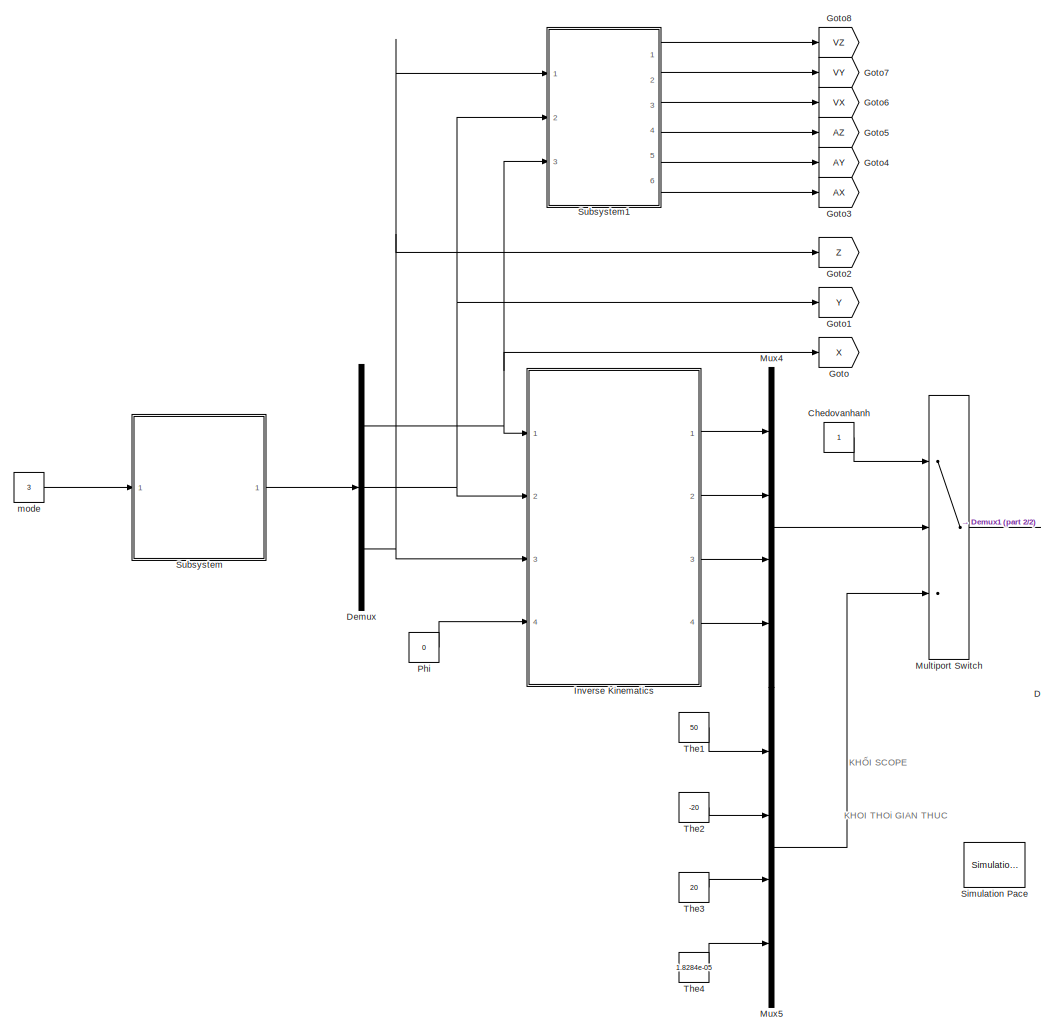
[diagram: root canvas - part 1/2, left side, full height]
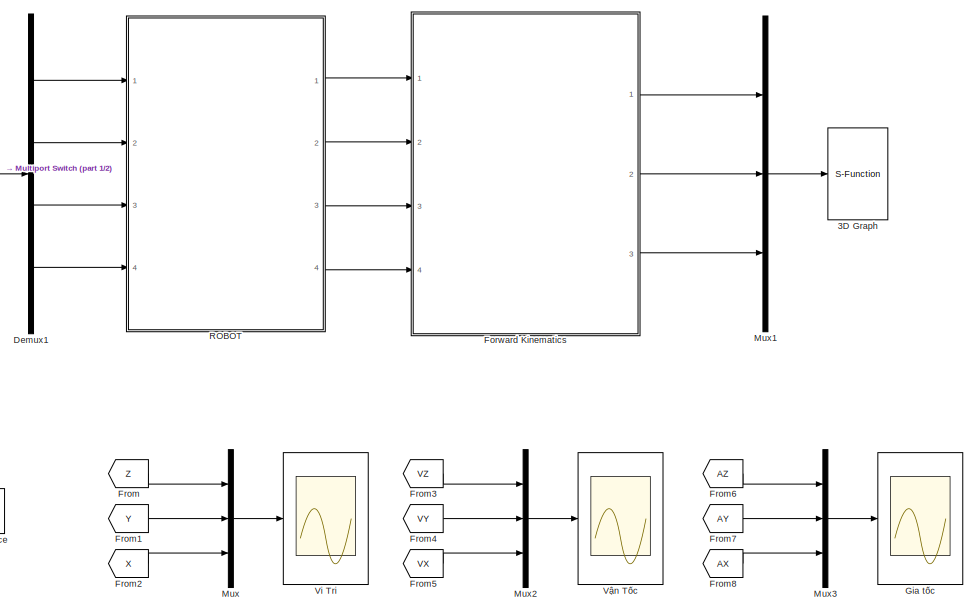
[diagram: root canvas - part 2/2, middle right region]
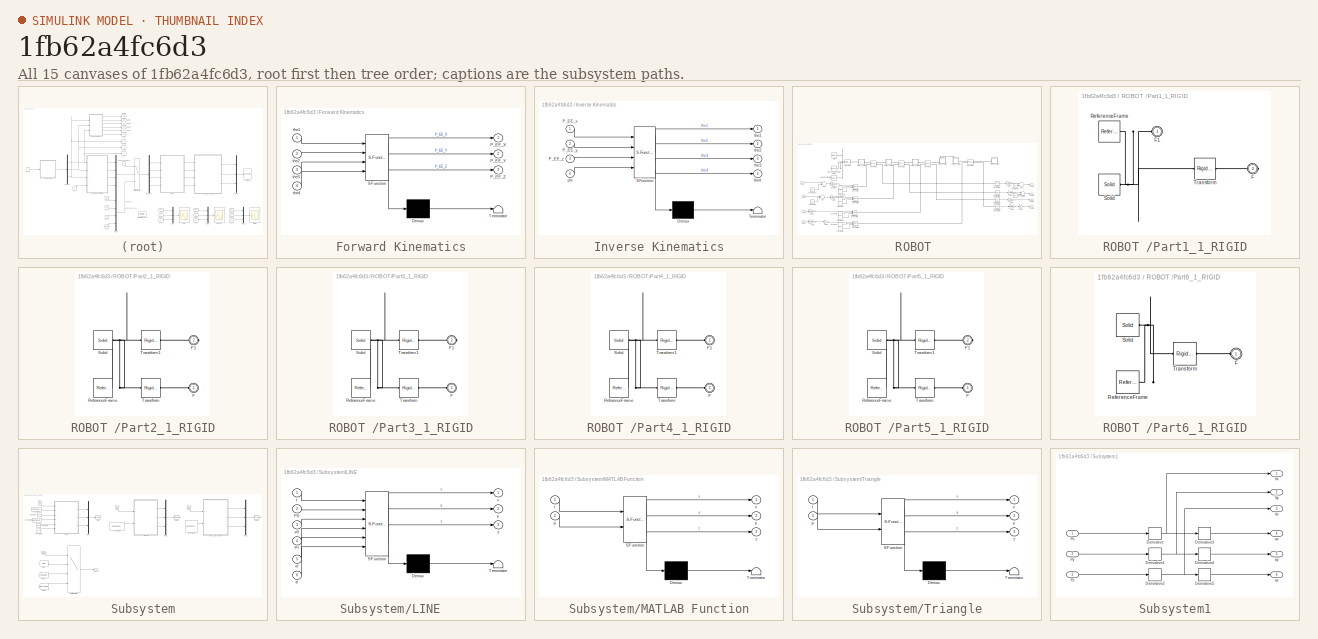
[diagram: thumbnail index - all 15 canvases of the model, root first then tree order]
MODEL slx_1fb62a4fc6d3
KIND model
CONFIG AbsTol = auto
CONFIG EnableMultiTasking = off
CONFIG FixedStep = 0.01
CONFIG MaxStep = auto
CONFIG MinStep = auto
CONFIG RelTol = 1e-3
CONFIG SampleTimeConstraint = Unconstrained
CONFIG Solver = FixedStepAuto
CONFIG SolverName = FixedStepAuto
CONFIG StartTime = 0.0
CONFIG StopTime = 40
WORKSPACE source: external: MATLAB File  (data not in archive)
BLOCK [S-Function] 3D Graph
  CopyFcn = if exist('sfun3d','file'), sfun3d([],[],[],'CopyBlock'); end
  DeleteFcn = if exist('sfun3d','file'), sfun3d([],[],[],'DeleteBlock'); end
  EnableBusSupport = off
  FunctionName = sfun3d
  LoadFcn = if exist('sfun3d','file'), sfun3d([],[],[],'LoadBlock'); end
  NameChangeFcn = if exist('sfun3d','file'), sfun3d([],[],[],'NameChange'); end
  Parameters = ax,T,np,cp,gd,ls,mk,mx,hd,tb
  Ports = [1]
  SFcnIsStateOwnerBlock = off
  SFunctionDeploymentMode = off
BLOCK [Constant] Chedovanhanh
BLOCK [Demux] Demux
  DisplayOption = bar
  Outputs = 3
  Ports = [1, 3]
BLOCK [Demux] Demux1
  DisplayOption = bar
  Ports = [1, 4]
BLOCK [SubSystem] Forward Kinematics
  ErrorFcn = Stateflow.Translate.translate
  PermitHierarchicalResolution = ExplicitOnly
  Ports = [4, 3]
  RequestExecContextInheritance = off
  SFBlockType = MATLAB Function
  TreatAsAtomicUnit = on
  Variant = off
BLOCK [Demux] Forward Kinematics/ Demux 
  Outputs = 1
  Ports = [1, 1]
BLOCK [S-Function] Forward Kinematics/ SFunction 
  EnableBusSupport = on
  FunctionName = sf_sfun
  PortCounts = [4 4]
  Ports = [4, 4]
  SFcnIsStateOwnerBlock = off
  SFunctionDeploymentMode = off
  Tag = Stateflow S-Function Assem1 2
BLOCK [Terminator] Forward Kinematics/ Terminator 
BLOCK [Outport] Forward Kinematics/P_EE_X
  IconDisplay = Port number
BLOCK [Outport] Forward Kinematics/P_EE_Y
  IconDisplay = Port number
  Port = 2
BLOCK [Outport] Forward Kinematics/P_EE_Z
  IconDisplay = Port number
  Port = 3
BLOCK [Inport] Forward Kinematics/the1
  IconDisplay = Port number
BLOCK [Inport] Forward Kinematics/the2
  IconDisplay = Port number
  Port = 2
BLOCK [Inport] Forward Kinematics/the3
  IconDisplay = Port number
  Port = 3
BLOCK [Inport] Forward Kinematics/the4
  IconDisplay = Port number
  Port = 4
BLOCK [From] From
  GotoTag = Z
BLOCK [From] From1
  GotoTag = Y
BLOCK [From] From2
  GotoTag = X
BLOCK [From] From3
  GotoTag = VZ
BLOCK [From] From4
  GotoTag = VY
BLOCK [From] From5
  GotoTag = VX
BLOCK [From] From6
  GotoTag = AZ
BLOCK [From] From7
  GotoTag = AY
BLOCK [From] From8
  GotoTag = AX
BLOCK [Scope] Gia tốc
  NumInputPorts = 1
  Ports = [1]
  ScopeSpecificationString = Simulink.scopes.TimeScopeBlockCfg('CurrentConfiguration', extmgr.ConfigurationSet(extmgr.Configuration('Core','General UI',true,'FigureColor',[1 1 1]),extmgr.Configuration('Core','Source UI',true),extmgr.Configuration('Sources','WiredSimulink',true,'DataLogging',true,'DataLoggingVariableName','ScopeData1','DataLoggingSaveFormat','StructureWithTime'),extmgr.Configuration('Visuals','Time Domain',tru...<+1853ch>
BLOCK [Goto] Goto
  GotoTag = X
BLOCK [Goto] Goto1
  GotoTag = Y
BLOCK [Goto] Goto2
  GotoTag = Z
BLOCK [Goto] Goto3
  GotoTag = AX
BLOCK [Goto] Goto4
  GotoTag = AY
BLOCK [Goto] Goto5
  GotoTag = AZ
BLOCK [Goto] Goto6
  GotoTag = VX
BLOCK [Goto] Goto7
  GotoTag = VY
BLOCK [Goto] Goto8
  GotoTag = VZ
BLOCK [SubSystem] Inverse Kinematics
  ErrorFcn = Stateflow.Translate.translate
  PermitHierarchicalResolution = ExplicitOnly
  Ports = [4, 4]
  RequestExecContextInheritance = off
  SFBlockType = MATLAB Function
  TreatAsAtomicUnit = on
  Variant = off
BLOCK [Demux] Inverse Kinematics/ Demux 
  Outputs = 1
  Ports = [1, 1]
BLOCK [S-Function] Inverse Kinematics/ SFunction 
  EnableBusSupport = on
  FunctionName = sf_sfun
  PortCounts = [4 5]
  Ports = [4, 5]
  SFcnIsStateOwnerBlock = off
  SFunctionDeploymentMode = off
  Tag = Stateflow S-Function Assem1 1
BLOCK [Terminator] Inverse Kinematics/ Terminator 
BLOCK [Inport] Inverse Kinematics/P_EE_x
  IconDisplay = Port number
BLOCK [Inport] Inverse Kinematics/P_EE_y
  IconDisplay = Port number
  Port = 2
BLOCK [Inport] Inverse Kinematics/P_EE_z
  IconDisplay = Port number
  Port = 3
BLOCK [Inport] Inverse Kinematics/phi
  IconDisplay = Port number
  Port = 4
BLOCK [Outport] Inverse Kinematics/the1
  IconDisplay = Port number
BLOCK [Outport] Inverse Kinematics/the2
  IconDisplay = Port number
  Port = 2
BLOCK [Outport] Inverse Kinematics/the3
  IconDisplay = Port number
  Port = 3
BLOCK [Outport] Inverse Kinematics/the4
  IconDisplay = Port number
  Port = 4
BLOCK [MultiPortSwitch] Multiport Switch
  InputSameDT = off
  Inputs = 2
  Ports = [3, 1]
  SaturateOnIntegerOverflow = off
BLOCK [Mux] Mux
  DisplayOption = bar
  Inputs = 3
  Ports = [3, 1]
BLOCK [Mux] Mux1
  DisplayOption = bar
  Inputs = 3
  Ports = [3, 1]
BLOCK [Mux] Mux2
  DisplayOption = bar
  Inputs = 3
  Ports = [3, 1]
BLOCK [Mux] Mux3
  DisplayOption = bar
  Inputs = 3
  Ports = [3, 1]
BLOCK [Mux] Mux4
  DisplayOption = bar
  Ports = [4, 1]
BLOCK [Mux] Mux5
  DisplayOption = bar
  Ports = [4, 1]
BLOCK [Constant] Phi
  Value = 0
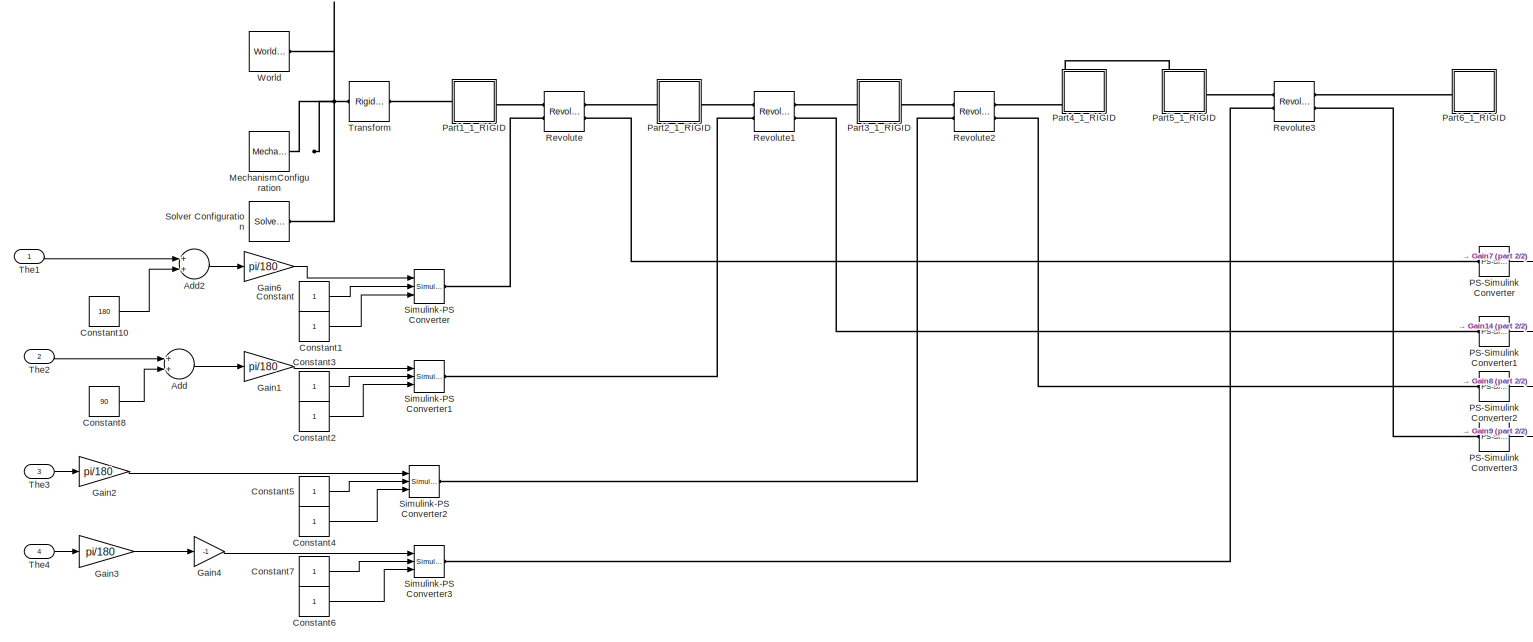
[diagram: ROBOT  - part 1/2, most of the canvas]
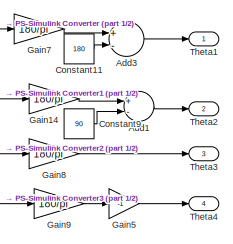
[diagram: ROBOT  - part 2/2, middle right region]
BLOCK [SubSystem] ROBOT 
  Ports = [4, 4]
  RequestExecContextInheritance = off
  Variant = off
BLOCK [Sum] ROBOT /Add
  InputSameDT = off
  OutDataTypeStr = Inherit: Inherit via internal rule
  Ports = [2, 1]
  SaturateOnIntegerOverflow = off
BLOCK [Sum] ROBOT /Add1
  InputSameDT = off
  Inputs = +-
  OutDataTypeStr = Inherit: Inherit via internal rule
  Ports = [2, 1]
  SaturateOnIntegerOverflow = off
BLOCK [Sum] ROBOT /Add2
  InputSameDT = off
  OutDataTypeStr = Inherit: Inherit via internal rule
  Ports = [2, 1]
  SaturateOnIntegerOverflow = off
BLOCK [Sum] ROBOT /Add3
  InputSameDT = off
  Inputs = +-
  OutDataTypeStr = Inherit: Inherit via internal rule
  Ports = [2, 1]
  SaturateOnIntegerOverflow = off
BLOCK [Constant] ROBOT /Constant
BLOCK [Constant] ROBOT /Constant1
BLOCK [Constant] ROBOT /Constant10
  Value = 180
BLOCK [Constant] ROBOT /Constant11
  Value = 180
BLOCK [Constant] ROBOT /Constant2
BLOCK [Constant] ROBOT /Constant3
BLOCK [Constant] ROBOT /Constant4
BLOCK [Constant] ROBOT /Constant5
BLOCK [Constant] ROBOT /Constant6
BLOCK [Constant] ROBOT /Constant7
BLOCK [Constant] ROBOT /Constant8
  Value = 90
BLOCK [Constant] ROBOT /Constant9
  Value = 90
BLOCK [Gain] ROBOT /Gain1
  Gain = pi/180
  OutDataTypeStr = Inherit: Inherit via internal rule
  ParamDataTypeStr = Inherit: Inherit via internal rule
  SaturateOnIntegerOverflow = off
BLOCK [Gain] ROBOT /Gain14
  Gain = 180/pi
  OutDataTypeStr = Inherit: Inherit via internal rule
  ParamDataTypeStr = Inherit: Inherit via internal rule
  SaturateOnIntegerOverflow = off
BLOCK [Gain] ROBOT /Gain2
  Gain = pi/180
  OutDataTypeStr = Inherit: Inherit via internal rule
  ParamDataTypeStr = Inherit: Inherit via internal rule
  SaturateOnIntegerOverflow = off
BLOCK [Gain] ROBOT /Gain3
  Gain = pi/180
  OutDataTypeStr = Inherit: Inherit via internal rule
  ParamDataTypeStr = Inherit: Inherit via internal rule
  SaturateOnIntegerOverflow = off
BLOCK [Gain] ROBOT /Gain4
  Gain = -1
  OutDataTypeStr = Inherit: Inherit via internal rule
  ParamDataTypeStr = Inherit: Inherit via internal rule
  SaturateOnIntegerOverflow = off
BLOCK [Gain] ROBOT /Gain5
  Gain = -1
  OutDataTypeStr = Inherit: Inherit via internal rule
  ParamDataTypeStr = Inherit: Inherit via internal rule
  SaturateOnIntegerOverflow = off
BLOCK [Gain] ROBOT /Gain6
  Gain = pi/180
  OutDataTypeStr = Inherit: Inherit via internal rule
  ParamDataTypeStr = Inherit: Inherit via internal rule
  SaturateOnIntegerOverflow = off
BLOCK [Gain] ROBOT /Gain7
  Gain = 180/pi
  OutDataTypeStr = Inherit: Inherit via internal rule
  ParamDataTypeStr = Inherit: Inherit via internal rule
  SaturateOnIntegerOverflow = off
BLOCK [Gain] ROBOT /Gain8
  Gain = 180/pi
  OutDataTypeStr = Inherit: Inherit via internal rule
  ParamDataTypeStr = Inherit: Inherit via internal rule
  SaturateOnIntegerOverflow = off
BLOCK [Gain] ROBOT /Gain9
  Gain = 180/pi
  OutDataTypeStr = Inherit: Inherit via internal rule
  ParamDataTypeStr = Inherit: Inherit via internal rule
  SaturateOnIntegerOverflow = off
BLOCK [Reference] ROBOT /MechanismConfiguration  REF=sm_lib/Utilities/Mechanism
Configuration
  Ports = [0, 0, 0, 0, 0, 0, 1]
  SourceBlock = sm_lib/Utilities/Mechanism\nConfiguration
  SourceProductBaseCode = MS
  SourceProductName = Simscape Multibody
  SourceType = Mechanism\nConfiguration
BLOCK [Reference] ROBOT /PS-Simulink Converter  REF=nesl_utility/PS-Simulink
Converter
  Ports = [0, 1, 0, 0, 0, 1]
  SourceBlock = nesl_utility/PS-Simulink\nConverter
  SourceProductBaseCode = SS
  SourceProductName = Simscape
  SourceType = PS-Simulink\nConverter
BLOCK [Reference] ROBOT /PS-Simulink Converter1  REF=nesl_utility/PS-Simulink
Converter
  Ports = [0, 1, 0, 0, 0, 1]
  SourceBlock = nesl_utility/PS-Simulink\nConverter
  SourceProductBaseCode = SS
  SourceProductName = Simscape
  SourceType = PS-Simulink\nConverter
BLOCK [Reference] ROBOT /PS-Simulink Converter2  REF=nesl_utility/PS-Simulink
Converter
  Ports = [0, 1, 0, 0, 0, 1]
  SourceBlock = nesl_utility/PS-Simulink\nConverter
  SourceProductBaseCode = SS
  SourceProductName = Simscape
  SourceType = PS-Simulink\nConverter
BLOCK [Reference] ROBOT /PS-Simulink Converter3  REF=nesl_utility/PS-Simulink
Converter
  Ports = [0, 1, 0, 0, 0, 1]
  SourceBlock = nesl_utility/PS-Simulink\nConverter
  SourceProductBaseCode = SS
  SourceProductName = Simscape
  SourceType = PS-Simulink\nConverter
BLOCK [SubSystem] ROBOT /Part1_1_RIGID
  Ports = [0, 0, 0, 0, 0, 1, 1]
  RequestExecContextInheritance = off
  Variant = off
BLOCK [PMIOPort] ROBOT /Part1_1_RIGID/F
  Port = 2
  Side = Right
BLOCK [PMIOPort] ROBOT /Part1_1_RIGID/F1
  Port = 1
  Side = Left
BLOCK [Reference] ROBOT /Part1_1_RIGID/ReferenceFrame  REF=sm_lib/Frames and
Transforms/Reference
Frame
  Ports = [0, 0, 0, 0, 0, 0, 1]
  SourceBlock = sm_lib/Frames and\nTransforms/Reference\nFrame
  SourceProductBaseCode = MS
  SourceProductName = Simscape Multibody
  SourceType = Reference\nFrame
BLOCK [Reference] ROBOT /Part1_1_RIGID/Solid  REF=sm_lib/Body Elements/Solid
  Ports = [0, 0, 0, 0, 0, 0, 1]
  SourceBlock = sm_lib/Body Elements/Solid
  SourceProductBaseCode = MS
  SourceProductName = Simscape Multibody
  SourceType = Solid
BLOCK [Reference] ROBOT /Part1_1_RIGID/Transform  REF=sm_lib/Frames and
Transforms/Rigid
Transform
  Ports = [0, 0, 0, 0, 0, 1, 1]
  SourceBlock = sm_lib/Frames and\nTransforms/Rigid\nTransform
  SourceProductBaseCode = MS
  SourceProductName = Simscape Multibody
  SourceType = Rigid\nTransform
BLOCK [SubSystem] ROBOT /Part2_1_RIGID
  Ports = [0, 0, 0, 0, 0, 1, 1]
  RequestExecContextInheritance = off
  Variant = off
BLOCK [PMIOPort] ROBOT /Part2_1_RIGID/F
  Port = 1
  Side = Left
BLOCK [PMIOPort] ROBOT /Part2_1_RIGID/F1
  Port = 2
  Side = Right
BLOCK [Reference] ROBOT /Part2_1_RIGID/ReferenceFrame  REF=sm_lib/Frames and
Transforms/Reference
Frame
  Ports = [0, 0, 0, 0, 0, 0, 1]
  SourceBlock = sm_lib/Frames and\nTransforms/Reference\nFrame
  SourceProductBaseCode = MS
  SourceProductName = Simscape Multibody
  SourceType = Reference\nFrame
BLOCK [Reference] ROBOT /Part2_1_RIGID/Solid  REF=sm_lib/Body Elements/Solid
  Ports = [0, 0, 0, 0, 0, 0, 1]
  SourceBlock = sm_lib/Body Elements/Solid
  SourceProductBaseCode = MS
  SourceProductName = Simscape Multibody
  SourceType = Solid
BLOCK [Reference] ROBOT /Part2_1_RIGID/Transform  REF=sm_lib/Frames and
Transforms/Rigid
Transform
  Ports = [0, 0, 0, 0, 0, 1, 1]
  SourceBlock = sm_lib/Frames and\nTransforms/Rigid\nTransform
  SourceProductBaseCode = MS
  SourceProductName = Simscape Multibody
  SourceType = Rigid\nTransform
BLOCK [Reference] ROBOT /Part2_1_RIGID/Transform1  REF=sm_lib/Frames and
Transforms/Rigid
Transform
  Ports = [0, 0, 0, 0, 0, 1, 1]
  SourceBlock = sm_lib/Frames and\nTransforms/Rigid\nTransform
  SourceProductBaseCode = MS
  SourceProductName = Simscape Multibody
  SourceType = Rigid\nTransform
BLOCK [SubSystem] ROBOT /Part3_1_RIGID
  Ports = [0, 0, 0, 0, 0, 1, 1]
  RequestExecContextInheritance = off
  Variant = off
BLOCK [PMIOPort] ROBOT /Part3_1_RIGID/F
  Port = 1
  Side = Left
BLOCK [PMIOPort] ROBOT /Part3_1_RIGID/F1
  Port = 2
  Side = Right
BLOCK [Reference] ROBOT /Part3_1_RIGID/ReferenceFrame  REF=sm_lib/Frames and
Transforms/Reference
Frame
  Ports = [0, 0, 0, 0, 0, 0, 1]
  SourceBlock = sm_lib/Frames and\nTransforms/Reference\nFrame
  SourceProductBaseCode = MS
  SourceProductName = Simscape Multibody
  SourceType = Reference\nFrame
BLOCK [Reference] ROBOT /Part3_1_RIGID/Solid  REF=sm_lib/Body Elements/Solid
  Ports = [0, 0, 0, 0, 0, 0, 1]
  SourceBlock = sm_lib/Body Elements/Solid
  SourceProductBaseCode = MS
  SourceProductName = Simscape Multibody
  SourceType = Solid
BLOCK [Reference] ROBOT /Part3_1_RIGID/Transform  REF=sm_lib/Frames and
Transforms/Rigid
Transform
  Ports = [0, 0, 0, 0, 0, 1, 1]
  SourceBlock = sm_lib/Frames and\nTransforms/Rigid\nTransform
  SourceProductBaseCode = MS
  SourceProductName = Simscape Multibody
  SourceType = Rigid\nTransform
BLOCK [Reference] ROBOT /Part3_1_RIGID/Transform1  REF=sm_lib/Frames and
Transforms/Rigid
Transform
  Ports = [0, 0, 0, 0, 0, 1, 1]
  SourceBlock = sm_lib/Frames and\nTransforms/Rigid\nTransform
  SourceProductBaseCode = MS
  SourceProductName = Simscape Multibody
  SourceType = Rigid\nTransform
BLOCK [SubSystem] ROBOT /Part4_1_RIGID
  Ports = [0, 0, 0, 0, 0, 2]
  RequestExecContextInheritance = off
  Variant = off
BLOCK [PMIOPort] ROBOT /Part4_1_RIGID/F
  Port = 2
  Side = Left
BLOCK [PMIOPort] ROBOT /Part4_1_RIGID/F1
  Port = 1
  Side = Left
BLOCK [Reference] ROBOT /Part4_1_RIGID/ReferenceFrame  REF=sm_lib/Frames and
Transforms/Reference
Frame
  Ports = [0, 0, 0, 0, 0, 0, 1]
  SourceBlock = sm_lib/Frames and\nTransforms/Reference\nFrame
  SourceProductBaseCode = MS
  SourceProductName = Simscape Multibody
  SourceType = Reference\nFrame
BLOCK [Reference] ROBOT /Part4_1_RIGID/Solid  REF=sm_lib/Body Elements/Solid
  Ports = [0, 0, 0, 0, 0, 0, 1]
  SourceBlock = sm_lib/Body Elements/Solid
  SourceProductBaseCode = MS
  SourceProductName = Simscape Multibody
  SourceType = Solid
BLOCK [Reference] ROBOT /Part4_1_RIGID/Transform  REF=sm_lib/Frames and
Transforms/Rigid
Transform
  Ports = [0, 0, 0, 0, 0, 1, 1]
  SourceBlock = sm_lib/Frames and\nTransforms/Rigid\nTransform
  SourceProductBaseCode = MS
  SourceProductName = Simscape Multibody
  SourceType = Rigid\nTransform
BLOCK [Reference] ROBOT /Part4_1_RIGID/Transform1  REF=sm_lib/Frames and
Transforms/Rigid
Transform
  Ports = [0, 0, 0, 0, 0, 1, 1]
  SourceBlock = sm_lib/Frames and\nTransforms/Rigid\nTransform
  SourceProductBaseCode = MS
  SourceProductName = Simscape Multibody
  SourceType = Rigid\nTransform
BLOCK [SubSystem] ROBOT /Part5_1_RIGID
  Ports = [0, 0, 0, 0, 0, 1, 1]
  RequestExecContextInheritance = off
  Variant = off
BLOCK [PMIOPort] ROBOT /Part5_1_RIGID/F
  Port = 1
  Side = Left
BLOCK [PMIOPort] ROBOT /Part5_1_RIGID/F1
  Port = 2
  Side = Right
BLOCK [Reference] ROBOT /Part5_1_RIGID/ReferenceFrame  REF=sm_lib/Frames and
Transforms/Reference
Frame
  Ports = [0, 0, 0, 0, 0, 0, 1]
  SourceBlock = sm_lib/Frames and\nTransforms/Reference\nFrame
  SourceProductBaseCode = MS
  SourceProductName = Simscape Multibody
  SourceType = Reference\nFrame
BLOCK [Reference] ROBOT /Part5_1_RIGID/Solid  REF=sm_lib/Body Elements/Solid
  Ports = [0, 0, 0, 0, 0, 0, 1]
  SourceBlock = sm_lib/Body Elements/Solid
  SourceProductBaseCode = MS
  SourceProductName = Simscape Multibody
  SourceType = Solid
BLOCK [Reference] ROBOT /Part5_1_RIGID/Transform  REF=sm_lib/Frames and
Transforms/Rigid
Transform
  Ports = [0, 0, 0, 0, 0, 1, 1]
  SourceBlock = sm_lib/Frames and\nTransforms/Rigid\nTransform
  SourceProductBaseCode = MS
  SourceProductName = Simscape Multibody
  SourceType = Rigid\nTransform
BLOCK [Reference] ROBOT /Part5_1_RIGID/Transform1  REF=sm_lib/Frames and
Transforms/Rigid
Transform
  Ports = [0, 0, 0, 0, 0, 1, 1]
  SourceBlock = sm_lib/Frames and\nTransforms/Rigid\nTransform
  SourceProductBaseCode = MS
  SourceProductName = Simscape Multibody
  SourceType = Rigid\nTransform
BLOCK [SubSystem] ROBOT /Part6_1_RIGID
  Ports = [0, 0, 0, 0, 0, 1]
  RequestExecContextInheritance = off
  Variant = off
BLOCK [PMIOPort] ROBOT /Part6_1_RIGID/F
  Port = 1
  Side = Left
BLOCK [Reference] ROBOT /Part6_1_RIGID/ReferenceFrame  REF=sm_lib/Frames and
Transforms/Reference
Frame
  Ports = [0, 0, 0, 0, 0, 0, 1]
  SourceBlock = sm_lib/Frames and\nTransforms/Reference\nFrame
  SourceProductBaseCode = MS
  SourceProductName = Simscape Multibody
  SourceType = Reference\nFrame
BLOCK [Reference] ROBOT /Part6_1_RIGID/Solid  REF=sm_lib/Body Elements/Solid
  Ports = [0, 0, 0, 0, 0, 0, 1]
  SourceBlock = sm_lib/Body Elements/Solid
  SourceProductBaseCode = MS
  SourceProductName = Simscape Multibody
  SourceType = Solid
BLOCK [Reference] ROBOT /Part6_1_RIGID/Transform  REF=sm_lib/Frames and
Transforms/Rigid
Transform
  Ports = [0, 0, 0, 0, 0, 1, 1]
  SourceBlock = sm_lib/Frames and\nTransforms/Rigid\nTransform
  SourceProductBaseCode = MS
  SourceProductName = Simscape Multibody
  SourceType = Rigid\nTransform
BLOCK [Reference] ROBOT /Revolute  REF=sm_lib/Joints/Revolute Joint
  Ports = [0, 0, 0, 0, 0, 2, 2]
  SourceBlock = sm_lib/Joints/Revolute Joint
  SourceProductBaseCode = MS
  SourceProductName = Simscape Multibody
  SourceType = Revolute Joint
BLOCK [Reference] ROBOT /Revolute1  REF=sm_lib/Joints/Revolute Joint
  Ports = [0, 0, 0, 0, 0, 2, 2]
  SourceBlock = sm_lib/Joints/Revolute Joint
  SourceProductBaseCode = MS
  SourceProductName = Simscape Multibody
  SourceType = Revolute Joint
BLOCK [Reference] ROBOT /Revolute2  REF=sm_lib/Joints/Revolute Joint
  Ports = [0, 0, 0, 0, 0, 2, 2]
  SourceBlock = sm_lib/Joints/Revolute Joint
  SourceProductBaseCode = MS
  SourceProductName = Simscape Multibody
  SourceType = Revolute Joint
BLOCK [Reference] ROBOT /Revolute3  REF=sm_lib/Joints/Revolute Joint
  Ports = [0, 0, 0, 0, 0, 2, 2]
  SourceBlock = sm_lib/Joints/Revolute Joint
  SourceProductBaseCode = MS
  SourceProductName = Simscape Multibody
  SourceType = Revolute Joint
BLOCK [Reference] ROBOT /Simulink-PS Converter  REF=nesl_utility/Simulink-PS
Converter
  Ports = [3, 0, 0, 0, 0, 0, 1]
  SourceBlock = nesl_utility/Simulink-PS\nConverter
  SourceProductBaseCode = SS
  SourceProductName = Simscape
  SourceType = Simulink-PS\nConverter
BLOCK [Reference] ROBOT /Simulink-PS Converter1  REF=nesl_utility/Simulink-PS
Converter
  Ports = [3, 0, 0, 0, 0, 0, 1]
  SourceBlock = nesl_utility/Simulink-PS\nConverter
  SourceProductBaseCode = SS
  SourceProductName = Simscape
  SourceType = Simulink-PS\nConverter
BLOCK [Reference] ROBOT /Simulink-PS Converter2  REF=nesl_utility/Simulink-PS
Converter
  Ports = [3, 0, 0, 0, 0, 0, 1]
  SourceBlock = nesl_utility/Simulink-PS\nConverter
  SourceProductBaseCode = SS
  SourceProductName = Simscape
  SourceType = Simulink-PS\nConverter
BLOCK [Reference] ROBOT /Simulink-PS Converter3  REF=nesl_utility/Simulink-PS
Converter
  Ports = [3, 0, 0, 0, 0, 0, 1]
  SourceBlock = nesl_utility/Simulink-PS\nConverter
  SourceProductBaseCode = SS
  SourceProductName = Simscape
  SourceType = Simulink-PS\nConverter
BLOCK [Reference] ROBOT /Solver Configuration  REF=nesl_utility/Solver
Configuration
  Ports = [0, 0, 0, 0, 0, 0, 1]
  SourceBlock = nesl_utility/Solver\nConfiguration
  SourceProductBaseCode = SS
  SourceProductName = Simscape
  SourceType = Solver\nConfiguration
BLOCK [Inport] ROBOT /The1
  IconDisplay = Port number
BLOCK [Inport] ROBOT /The2
  IconDisplay = Port number
  Port = 2
BLOCK [Inport] ROBOT /The3
  IconDisplay = Port number
  Port = 3
BLOCK [Inport] ROBOT /The4
  IconDisplay = Port number
  Port = 4
BLOCK [Outport] ROBOT /Theta1
  IconDisplay = Port number
BLOCK [Outport] ROBOT /Theta2
  IconDisplay = Port number
  Port = 2
BLOCK [Outport] ROBOT /Theta3
  IconDisplay = Port number
  Port = 3
BLOCK [Outport] ROBOT /Theta4
  IconDisplay = Port number
  Port = 4
BLOCK [Reference] ROBOT /Transform  REF=sm_lib/Frames and
Transforms/Rigid
Transform
  Ports = [0, 0, 0, 0, 0, 1, 1]
  SourceBlock = sm_lib/Frames and\nTransforms/Rigid\nTransform
  SourceProductBaseCode = MS
  SourceProductName = Simscape Multibody
  SourceType = Rigid\nTransform
BLOCK [Reference] ROBOT /World  REF=sm_lib/Frames and
Transforms/World Frame
  Ports = [0, 0, 0, 0, 0, 0, 1]
  SourceBlock = sm_lib/Frames and\nTransforms/World Frame
  SourceProductBaseCode = MS
  SourceProductName = Simscape Multibody
  SourceType = World Frame
BLOCK [Reference] Simulation Pace  REF=aerolibanimutils/Simulation Pace
  AttributesFormatString = %<SleepMode>\n%<SimulationPace> sec/sec
  Ports = []
  SourceBlock = aerolibanimutils/Simulation Pace
  SourceProductBaseCode = AE
  SourceProductName = Aerospace Blockset
  SourceType = Simulation Pace
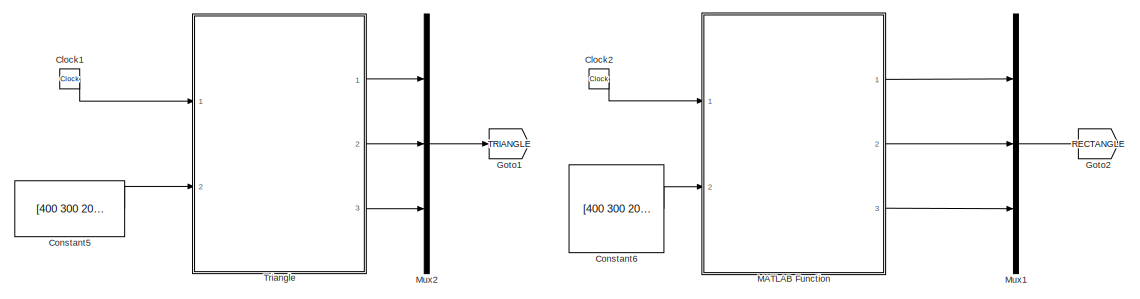
[diagram: Subsystem - part 1/2, top right region]
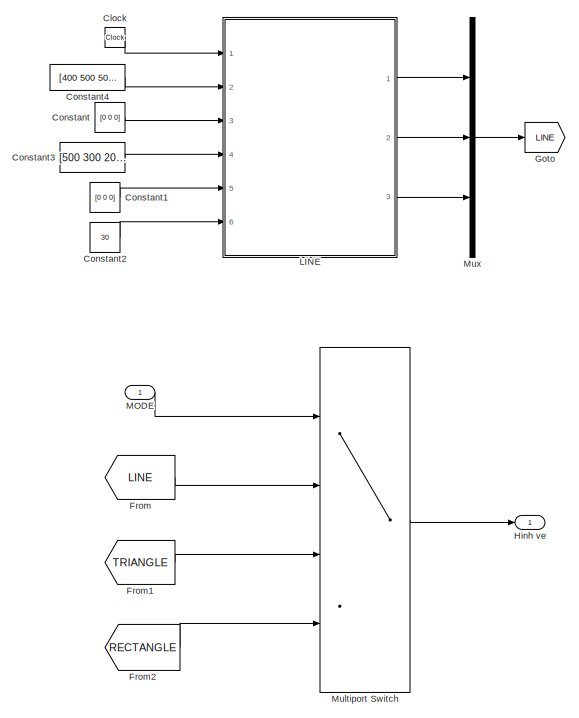
[diagram: Subsystem - part 2/2, left side, full height]
BLOCK [SubSystem] Subsystem
  Ports = [1, 1]
  RequestExecContextInheritance = off
  Variant = off
BLOCK [Clock] Subsystem/Clock
  Decimation = 30
BLOCK [Clock] Subsystem/Clock1
  Decimation = 30
BLOCK [Clock] Subsystem/Clock2
  Decimation = 40
BLOCK [Constant] Subsystem/Constant
  Value = [0 0 0]
BLOCK [Constant] Subsystem/Constant1
  Value = [0 0 0]
BLOCK [Constant] Subsystem/Constant2
  Value = 30
BLOCK [Constant] Subsystem/Constant3
  Value = [500 300 200]
BLOCK [Constant] Subsystem/Constant4
  Value = [400 500 500]
BLOCK [Constant] Subsystem/Constant5
  Value = [400 300 200; 400 500 200; 400 300 400  ]
BLOCK [Constant] Subsystem/Constant6
  Value = [400 300 200; 600 300 200; 600 500 200 ; 400 500 200 ]
BLOCK [From] Subsystem/From
  GotoTag = LINE
BLOCK [From] Subsystem/From1
  GotoTag = TRIANGLE
BLOCK [From] Subsystem/From2
  GotoTag = RECTANGLE
BLOCK [Goto] Subsystem/Goto
  GotoTag = LINE
BLOCK [Goto] Subsystem/Goto1
  GotoTag = TRIANGLE
BLOCK [Goto] Subsystem/Goto2
  GotoTag = RECTANGLE
BLOCK [Outport] Subsystem/Hinh ve
  IconDisplay = Port number
BLOCK [SubSystem] Subsystem/LINE   
  ErrorFcn = Stateflow.Translate.translate
  PermitHierarchicalResolution = ExplicitOnly
  Ports = [6, 3]
  RequestExecContextInheritance = off
  SFBlockType = MATLAB Function
  TreatAsAtomicUnit = on
  Variant = off
BLOCK [Demux] Subsystem/LINE   / Demux 
  Outputs = 1
  Ports = [1, 1]
BLOCK [S-Function] Subsystem/LINE   / SFunction 
  EnableBusSupport = on
  FunctionName = sf_sfun
  PortCounts = [6 4]
  Ports = [6, 4]
  SFcnIsStateOwnerBlock = off
  SFunctionDeploymentMode = off
  Tag = Stateflow S-Function Assem1 3
BLOCK [Terminator] Subsystem/LINE   / Terminator 
BLOCK [Inport] Subsystem/LINE   /P0
  IconDisplay = Port number
  Port = 2
BLOCK [Inport] Subsystem/LINE   /Pf
  IconDisplay = Port number
  Port = 4
BLOCK [Inport] Subsystem/LINE   /t
  IconDisplay = Port number
BLOCK [Inport] Subsystem/LINE   /tf
  IconDisplay = Port number
  Port = 6
BLOCK [Inport] Subsystem/LINE   /v0
  IconDisplay = Port number
  Port = 3
BLOCK [Inport] Subsystem/LINE   /vf
  IconDisplay = Port number
  Port = 5
BLOCK [Outport] Subsystem/LINE   /x
  IconDisplay = Port number
BLOCK [Outport] Subsystem/LINE   /y
  IconDisplay = Port number
  Port = 2
BLOCK [Outport] Subsystem/LINE   /z
  IconDisplay = Port number
  Port = 3
BLOCK [SubSystem] Subsystem/MATLAB Function
  ErrorFcn = Stateflow.Translate.translate
  PermitHierarchicalResolution = ExplicitOnly
  Ports = [2, 3]
  RequestExecContextInheritance = off
  SFBlockType = MATLAB Function
  TreatAsAtomicUnit = on
  Variant = off
BLOCK [Demux] Subsystem/MATLAB Function/ Demux 
  Outputs = 1
  Ports = [1, 1]
BLOCK [S-Function] Subsystem/MATLAB Function/ SFunction 
  EnableBusSupport = on
  FunctionName = sf_sfun
  PortCounts = [2 4]
  Ports = [2, 4]
  SFcnIsStateOwnerBlock = off
  SFunctionDeploymentMode = off
  Tag = Stateflow S-Function Assem1 5
BLOCK [Terminator] Subsystem/MATLAB Function/ Terminator 
BLOCK [Inport] Subsystem/MATLAB Function/p
  IconDisplay = Port number
  Port = 2
BLOCK [Inport] Subsystem/MATLAB Function/t
  IconDisplay = Port number
BLOCK [Outport] Subsystem/MATLAB Function/x
  IconDisplay = Port number
BLOCK [Outport] Subsystem/MATLAB Function/y
  IconDisplay = Port number
  Port = 2
BLOCK [Outport] Subsystem/MATLAB Function/z
  IconDisplay = Port number
  Port = 3
BLOCK [Inport] Subsystem/MODE
  IconDisplay = Port number
BLOCK [MultiPortSwitch] Subsystem/Multiport Switch
  InputSameDT = off
  Ports = [4, 1]
  SaturateOnIntegerOverflow = off
BLOCK [Mux] Subsystem/Mux
  DisplayOption = bar
  Inputs = 3
  Ports = [3, 1]
BLOCK [Mux] Subsystem/Mux1
  DisplayOption = bar
  Inputs = 3
  Ports = [3, 1]
BLOCK [Mux] Subsystem/Mux2
  DisplayOption = bar
  Inputs = 3
  Ports = [3, 1]
BLOCK [SubSystem] Subsystem/Triangle
  ErrorFcn = Stateflow.Translate.translate
  PermitHierarchicalResolution = ExplicitOnly
  Ports = [2, 3]
  RequestExecContextInheritance = off
  SFBlockType = MATLAB Function
  TreatAsAtomicUnit = on
  Variant = off
BLOCK [Demux] Subsystem/Triangle/ Demux 
  Outputs = 1
  Ports = [1, 1]
BLOCK [S-Function] Subsystem/Triangle/ SFunction 
  EnableBusSupport = on
  FunctionName = sf_sfun
  PortCounts = [2 4]
  Ports = [2, 4]
  SFcnIsStateOwnerBlock = off
  SFunctionDeploymentMode = off
  Tag = Stateflow S-Function Assem1 4
BLOCK [Terminator] Subsystem/Triangle/ Terminator 
BLOCK [Inport] Subsystem/Triangle/p
  IconDisplay = Port number
  Port = 2
BLOCK [Inport] Subsystem/Triangle/t
  IconDisplay = Port number
BLOCK [Outport] Subsystem/Triangle/x
  IconDisplay = Port number
BLOCK [Outport] Subsystem/Triangle/y
  IconDisplay = Port number
  Port = 2
BLOCK [Outport] Subsystem/Triangle/z
  IconDisplay = Port number
  Port = 3
BLOCK [SubSystem] Subsystem1
  Ports = [3, 6]
  RequestExecContextInheritance = off
  Variant = off
BLOCK [Derivative] Subsystem1/Derivative
BLOCK [Derivative] Subsystem1/Derivative1
BLOCK [Derivative] Subsystem1/Derivative2
BLOCK [Derivative] Subsystem1/Derivative3
BLOCK [Derivative] Subsystem1/Derivative4
BLOCK [Derivative] Subsystem1/Derivative5
BLOCK [Inport] Subsystem1/Px
  IconDisplay = Port number
BLOCK [Inport] Subsystem1/Py
  IconDisplay = Port number
  Port = 2
BLOCK [Inport] Subsystem1/Pz
  IconDisplay = Port number
  Port = 3
BLOCK [Outport] Subsystem1/Vx
  IconDisplay = Port number
BLOCK [Outport] Subsystem1/Vy
  IconDisplay = Port number
  Port = 2
BLOCK [Outport] Subsystem1/Vz
  IconDisplay = Port number
  Port = 3
BLOCK [Outport] Subsystem1/ax
  IconDisplay = Port number
  Port = 4
BLOCK [Outport] Subsystem1/ay
  IconDisplay = Port number
  Port = 5
BLOCK [Outport] Subsystem1/az
  IconDisplay = Port number
  Port = 6
BLOCK [Constant] The1
  Value = 50
BLOCK [Constant] The2
  Value = -20
BLOCK [Constant] The3
  Value = 20
BLOCK [Constant] The4
  Value = 1.8284e-05
BLOCK [Scope] Vi Tri
  NumInputPorts = 1
  Ports = [1]
  ScopeSpecificationString = Simulink.scopes.TimeScopeBlockCfg('CurrentConfiguration', extmgr.ConfigurationSet(extmgr.Configuration('Core','General UI',true,'FigureColor',[1 1 1]),extmgr.Configuration('Core','Source UI',true),extmgr.Configuration('Sources','WiredSimulink',true,'DataLogging',true,'DataLoggingVariableName','ScopeData2','DataLoggingSaveFormat','StructureWithTime'),extmgr.Configuration('Visuals','Time Domain',tru...<+1851ch>
BLOCK [Scope] Vận Tốc
  NumInputPorts = 1
  Ports = [1]
  ScopeSpecificationString = Simulink.scopes.TimeScopeBlockCfg('CurrentConfiguration', extmgr.ConfigurationSet(extmgr.Configuration('Core','General UI',true,'FigureColor',[1 1 1]),extmgr.Configuration('Core','Source UI',true),extmgr.Configuration('Sources','WiredSimulink',true,'DataLogging',true,'DataLoggingSaveFormat','StructureWithTime'),extmgr.Configuration('Visuals','Time Domain',true,'SerializedDisplays',{struct('MinYLim...<+1805ch>
BLOCK [Constant] mode
  Value = 3
ANNOTATION (root): KHOI THOi GIAN THUC
ANNOTATION (root): KHỐI SCOPE
LINE Chedovanhanh:1 -> Multiport Switch:1
LINE Demux1:1 -> ROBOT :1
LINE Demux1:2 -> ROBOT :2
LINE Demux1:3 -> ROBOT :3
LINE Demux1:4 -> ROBOT :4
NET Demux:1 -> Goto:1, Inverse Kinematics:1, Subsystem1:3
NET Demux:2 -> Goto1:1, Inverse Kinematics:2, Subsystem1:2
NET Demux:3 -> Goto2:1, Inverse Kinematics:3, Subsystem1:1
LINE Forward Kinematics:1 -> Mux1:1
LINE Forward Kinematics:2 -> Mux1:2
LINE Forward Kinematics:3 -> Mux1:3
LINE From1:1 -> Mux:2
LINE From2:1 -> Mux:3
LINE From3:1 -> Mux2:1
LINE From4:1 -> Mux2:2
LINE From5:1 -> Mux2:3
LINE From6:1 -> Mux3:1
LINE From7:1 -> Mux3:2
LINE From8:1 -> Mux3:3
LINE From:1 -> Mux:1
LINE Inverse Kinematics:1 -> Mux4:1
LINE Inverse Kinematics:2 -> Mux4:2
LINE Inverse Kinematics:3 -> Mux4:3
LINE Inverse Kinematics:4 -> Mux4:4
LINE Multiport Switch:1 -> Demux1:1
LINE Mux1:1 -> 3D Graph:1
LINE Mux2:1 -> Vận Tốc:1
LINE Mux3:1 -> Gia tốc:1
LINE Mux4:1 -> Multiport Switch:2
LINE Mux5:1 -> Multiport Switch:3
LINE Mux:1 -> Vi Tri:1
LINE Phi:1 -> Inverse Kinematics:4
LINE ROBOT /Add1:1 -> ROBOT /Theta2:1
LINE ROBOT /Add2:1 -> ROBOT /Gain6:1
LINE ROBOT /Add3:1 -> ROBOT /Theta1:1
LINE ROBOT /Add:1 -> ROBOT /Gain1:1
LINE ROBOT /Constant10:1 -> ROBOT /Add2:2
LINE ROBOT /Constant11:1 -> ROBOT /Add3:2
LINE ROBOT /Constant1:1 -> ROBOT /Simulink-PS Converter:3
LINE ROBOT /Constant2:1 -> ROBOT /Simulink-PS Converter1:3
LINE ROBOT /Constant3:1 -> ROBOT /Simulink-PS Converter1:2
LINE ROBOT /Constant4:1 -> ROBOT /Simulink-PS Converter2:3
LINE ROBOT /Constant5:1 -> ROBOT /Simulink-PS Converter2:2
LINE ROBOT /Constant6:1 -> ROBOT /Simulink-PS Converter3:3
LINE ROBOT /Constant7:1 -> ROBOT /Simulink-PS Converter3:2
LINE ROBOT /Constant8:1 -> ROBOT /Add:2
LINE ROBOT /Constant9:1 -> ROBOT /Add1:2
LINE ROBOT /Constant:1 -> ROBOT /Simulink-PS Converter:2
LINE ROBOT /Gain14:1 -> ROBOT /Add1:1
LINE ROBOT /Gain1:1 -> ROBOT /Simulink-PS Converter1:1
LINE ROBOT /Gain2:1 -> ROBOT /Simulink-PS Converter2:1
LINE ROBOT /Gain3:1 -> ROBOT /Gain4:1
LINE ROBOT /Gain4:1 -> ROBOT /Simulink-PS Converter3:1
LINE ROBOT /Gain5:1 -> ROBOT /Theta4:1
LINE ROBOT /Gain6:1 -> ROBOT /Simulink-PS Converter:1
LINE ROBOT /Gain7:1 -> ROBOT /Add3:1
LINE ROBOT /Gain8:1 -> ROBOT /Theta3:1
LINE ROBOT /Gain9:1 -> ROBOT /Gain5:1
LINE ROBOT /PS-Simulink Converter1:1 -> ROBOT /Gain14:1
LINE ROBOT /PS-Simulink Converter2:1 -> ROBOT /Gain8:1
LINE ROBOT /PS-Simulink Converter3:1 -> ROBOT /Gain9:1
LINE ROBOT /PS-Simulink Converter:1 -> ROBOT /Gain7:1
LINE ROBOT /The1:1 -> ROBOT /Add2:1
LINE ROBOT /The2:1 -> ROBOT /Add:1
LINE ROBOT /The3:1 -> ROBOT /Gain2:1
LINE ROBOT /The4:1 -> ROBOT /Gain3:1
LINE ROBOT :1 -> Forward Kinematics:1
LINE ROBOT :2 -> Forward Kinematics:2
LINE ROBOT :3 -> Forward Kinematics:3
LINE ROBOT :4 -> Forward Kinematics:4
LINE Subsystem/Clock1:1 -> Subsystem/Triangle:1
LINE Subsystem/Clock2:1 -> Subsystem/MATLAB Function:1
LINE Subsystem/Clock:1 -> Subsystem/LINE   :1
LINE Subsystem/Constant1:1 -> Subsystem/LINE   :5
LINE Subsystem/Constant2:1 -> Subsystem/LINE   :6
LINE Subsystem/Constant3:1 -> Subsystem/LINE   :4
LINE Subsystem/Constant4:1 -> Subsystem/LINE   :2
LINE Subsystem/Constant5:1 -> Subsystem/Triangle:2
LINE Subsystem/Constant6:1 -> Subsystem/MATLAB Function:2
LINE Subsystem/Constant:1 -> Subsystem/LINE   :3
LINE Subsystem/From1:1 -> Subsystem/Multiport Switch:3
LINE Subsystem/From2:1 -> Subsystem/Multiport Switch:4
LINE Subsystem/From:1 -> Subsystem/Multiport Switch:2
LINE Subsystem/LINE   :1 -> Subsystem/Mux:1
LINE Subsystem/LINE   :2 -> Subsystem/Mux:2
LINE Subsystem/LINE   :3 -> Subsystem/Mux:3
LINE Subsystem/MATLAB Function:1 -> Subsystem/Mux1:1
LINE Subsystem/MATLAB Function:2 -> Subsystem/Mux1:2
LINE Subsystem/MATLAB Function:3 -> Subsystem/Mux1:3
LINE Subsystem/MODE:1 -> Subsystem/Multiport Switch:1
LINE Subsystem/Multiport Switch:1 -> Subsystem/Hinh ve:1
LINE Subsystem/Mux1:1 -> Subsystem/Goto2:1
LINE Subsystem/Mux2:1 -> Subsystem/Goto1:1
LINE Subsystem/Mux:1 -> Subsystem/Goto:1
LINE Subsystem/Triangle:1 -> Subsystem/Mux2:1
LINE Subsystem/Triangle:2 -> Subsystem/Mux2:2
LINE Subsystem/Triangle:3 -> Subsystem/Mux2:3
NET Subsystem1/Derivative1:1 -> Subsystem1/Derivative4:1, Subsystem1/Vy:1
NET Subsystem1/Derivative2:1 -> Subsystem1/Derivative5:1, Subsystem1/Vz:1
LINE Subsystem1/Derivative3:1 -> Subsystem1/ax:1
LINE Subsystem1/Derivative4:1 -> Subsystem1/ay:1
LINE Subsystem1/Derivative5:1 -> Subsystem1/az:1
NET Subsystem1/Derivative:1 -> Subsystem1/Derivative3:1, Subsystem1/Vx:1
LINE Subsystem1/Px:1 -> Subsystem1/Derivative:1
LINE Subsystem1/Py:1 -> Subsystem1/Derivative1:1
LINE Subsystem1/Pz:1 -> Subsystem1/Derivative2:1
LINE Subsystem1:1 -> Goto8:1
LINE Subsystem1:2 -> Goto7:1
LINE Subsystem1:3 -> Goto6:1
LINE Subsystem1:4 -> Goto5:1
LINE Subsystem1:5 -> Goto4:1
LINE Subsystem1:6 -> Goto3:1
LINE Subsystem:1 -> Demux:1
LINE The1:1 -> Mux5:1
LINE The2:1 -> Mux5:2
LINE The3:1 -> Mux5:3
LINE The4:1 -> Mux5:4
LINE mode:1 -> Subsystem:1
PNET net1: ROBOT /MechanismConfiguration:RConn1 -- ROBOT /Solver Configuration:RConn1 -- ROBOT /Transform:LConn1 -- ROBOT /World:RConn1
PLINE ROBOT /PS-Simulink Converter1:LConn1 -- ROBOT /Revolute1:RConn2
PLINE ROBOT /PS-Simulink Converter2:LConn1 -- ROBOT /Revolute2:RConn2
PLINE ROBOT /PS-Simulink Converter3:LConn1 -- ROBOT /Revolute3:RConn2
PLINE ROBOT /PS-Simulink Converter:LConn1 -- ROBOT /Revolute:RConn2
PNET net2: ROBOT /Part1_1_RIGID/F1:RConn1 -- ROBOT /Part1_1_RIGID/ReferenceFrame:RConn1 -- ROBOT /Part1_1_RIGID/Solid:RConn1 -- ROBOT /Part1_1_RIGID/Transform:LConn1
PLINE ROBOT /Part1_1_RIGID/F:RConn1 -- ROBOT /Part1_1_RIGID/Transform:RConn1
PLINE ROBOT /Part1_1_RIGID:LConn1 -- ROBOT /Transform:RConn1
PLINE ROBOT /Part1_1_RIGID:RConn1 -- ROBOT /Revolute:LConn1
PLINE ROBOT /Part2_1_RIGID/F1:RConn1 -- ROBOT /Part2_1_RIGID/Transform1:RConn1
PLINE ROBOT /Part2_1_RIGID/F:RConn1 -- ROBOT /Part2_1_RIGID/Transform:RConn1
PNET net3: ROBOT /Part2_1_RIGID/ReferenceFrame:RConn1 -- ROBOT /Part2_1_RIGID/Solid:RConn1 -- ROBOT /Part2_1_RIGID/Transform1:LConn1 -- ROBOT /Part2_1_RIGID/Transform:LConn1
PLINE ROBOT /Part2_1_RIGID:LConn1 -- ROBOT /Revolute:RConn1
PLINE ROBOT /Part2_1_RIGID:RConn1 -- ROBOT /Revolute1:LConn1
PLINE ROBOT /Part3_1_RIGID/F1:RConn1 -- ROBOT /Part3_1_RIGID/Transform1:RConn1
PLINE ROBOT /Part3_1_RIGID/F:RConn1 -- ROBOT /Part3_1_RIGID/Transform:RConn1
PNET net4: ROBOT /Part3_1_RIGID/ReferenceFrame:RConn1 -- ROBOT /Part3_1_RIGID/Solid:RConn1 -- ROBOT /Part3_1_RIGID/Transform1:LConn1 -- ROBOT /Part3_1_RIGID/Transform:LConn1
PLINE ROBOT /Part3_1_RIGID:LConn1 -- ROBOT /Revolute1:RConn1
PLINE ROBOT /Part3_1_RIGID:RConn1 -- ROBOT /Revolute2:LConn1
PLINE ROBOT /Part4_1_RIGID/F1:RConn1 -- ROBOT /Part4_1_RIGID/Transform1:RConn1
PLINE ROBOT /Part4_1_RIGID/F:RConn1 -- ROBOT /Part4_1_RIGID/Transform:RConn1
PNET net5: ROBOT /Part4_1_RIGID/ReferenceFrame:RConn1 -- ROBOT /Part4_1_RIGID/Solid:RConn1 -- ROBOT /Part4_1_RIGID/Transform1:LConn1 -- ROBOT /Part4_1_RIGID/Transform:LConn1
PLINE ROBOT /Part4_1_RIGID:LConn1 -- ROBOT /Part5_1_RIGID:LConn1
PLINE ROBOT /Part4_1_RIGID:LConn2 -- ROBOT /Revolute2:RConn1
PLINE ROBOT /Part5_1_RIGID/F1:RConn1 -- ROBOT /Part5_1_RIGID/Transform1:RConn1
PLINE ROBOT /Part5_1_RIGID/F:RConn1 -- ROBOT /Part5_1_RIGID/Transform:RConn1
PNET net6: ROBOT /Part5_1_RIGID/ReferenceFrame:RConn1 -- ROBOT /Part5_1_RIGID/Solid:RConn1 -- ROBOT /Part5_1_RIGID/Transform1:LConn1 -- ROBOT /Part5_1_RIGID/Transform:LConn1
PLINE ROBOT /Part5_1_RIGID:RConn1 -- ROBOT /Revolute3:LConn1
PLINE ROBOT /Part6_1_RIGID/F:RConn1 -- ROBOT /Part6_1_RIGID/Transform:RConn1
PNET net7: ROBOT /Part6_1_RIGID/ReferenceFrame:RConn1 -- ROBOT /Part6_1_RIGID/Solid:RConn1 -- ROBOT /Part6_1_RIGID/Transform:LConn1
PLINE ROBOT /Part6_1_RIGID:LConn1 -- ROBOT /Revolute3:RConn1
PLINE ROBOT /Revolute1:LConn2 -- ROBOT /Simulink-PS Converter1:RConn1
PLINE ROBOT /Revolute2:LConn2 -- ROBOT /Simulink-PS Converter2:RConn1
PLINE ROBOT /Revolute3:LConn2 -- ROBOT /Simulink-PS Converter3:RConn1
PLINE ROBOT /Revolute:LConn2 -- ROBOT /Simulink-PS Converter:RConn1
note: NET lines group one-source signal fan-out (src -> all destinations, sorted); 1:1 wires keep LINE; PNET lines group multi-terminal physical nets as a canonical sorted terminal list (undirected conserving connections); 2-terminal nets keep the pairwise PLINE form
CHART Inverse Kinematics states=1 transitions=1
  STATE_LABEL 'eML_blk_kernel()'
  STATE_LABEL 'SCRIPT:\nfunction [the1,the2,the3,the4]=IK_4DOF(P_EE_x,P_EE_y,P_EE_z,phi)\nl1=150; l2=350; l3=363.5; l4=210;\nd1=140;\n % tim the1\nthe1=atan2d(P_EE_y,P_EE_x);\nPx=P_EE_x-l4*cosd(the1)*cosd(phi);\nPy=P_EE_y-l4*sind(the1)*cosd(phi);\nPz=P_EE_z+l4*sind(phi);\n\n %tim theta3 >0\n nx=Px*cosd(the1)+Py*sind(the1)-l1;\n ny=Pz-d1;\n c3=(nx*nx+ny*ny-l3*l3-l2*l2)/(2*l2*l3);\n s3=sqrt(1-c3^2);\n the3=atan2d(s3,c3);\n %tim t...<+150ch>'
CHART Forward Kinematics states=1 transitions=1
  STATE_LABEL 'eML_blk_kernel()'
  STATE_LABEL 'SCRIPT:\nfunction [P_EE_X,P_EE_Y,P_EE_Z]=FK_4DOF(the1,the2,the3,the4)\nl1=150; l2=350; l3=363.5; l4=210;\nd1=140;\nP_EE_X=cosd(the1)*(l1+l3*cosd(the2+the3)+l2*cosd(the2)+l4*cosd(the2+the3+the4));\nP_EE_Y=sind(the1)*(l1+l3*cosd(the2+the3)+l2*cosd(the2)+l4*cosd(the2+the3+the4));\nP_EE_Z=d1-l3*sind(the2+the3)-l2*sind(the2)-l4*sind(the2+the3+the4);\nend\n\n'
CHART Subsystem/LINE    states=1 transitions=1
  STATE_LABEL 'eML_blk_kernel()'
  STATE_LABEL 'SCRIPT:\nfunction [x,y,z] = LINE(t,P0,v0,Pf,vf,tf)\na10=P0(1);\na20=P0(2);\na30=P0(3);\na11=v0(1);\na21=v0(2);\na31=v0(3);\na12=3/tf^2*(Pf(1)-P0(1))-2/tf*v0(1)-1/tf*vf(1);\na22=3/tf^2*(Pf(2)-P0(2))-2/tf*v0(2)-1/tf*vf(2);\na32=3/tf^2*(Pf(3)-P0(3))-2/tf*v0(3)-1/tf*vf(3);\na13=-2/tf^3*(Pf(1)-P0(1))+1/tf^2*(vf(1)+v0(1));\na23=-2/tf^3*(Pf(2)-P0(2))+1/tf^2*(vf(2)+v0(2));\na33=-2/tf^3*(Pf(3)-P0(3))+1/tf^2*(vf(3)+v0(3...<+230ch>'
CHART Subsystem/Triangle states=1 transitions=1
  STATE_LABEL 'eML_blk_kernel()'
  STATE_LABEL 'SCRIPT:\nfunction [x,y,z] = Triangle(t,p)\nt0=0;\ntf=10;\nt1=t;\nv0=0;\nvf=0;\n%Phương trình quĩ đạo bậc 3: P(t) = a0 + a1*t+ a2*t^2 + a3*t^3\nA=[ 1 t0 t0^2 t0^3;\n    0  1  2*t0 3*t0^2; \n    1 tf tf^2 tf^3;\n    0 1  2*tf 3*tf^2;];\nif t<=10\n%%\nC=[ p(1,1); v0; p(2,1); vf];\nBx=A\\C;\nx = Bx(1,1) + Bx(2,1)*t1 +Bx(3,1)*t1^2 + Bx(4,1)*t1^3;\nC=[p(1,2); v0; p(2,2); vf];\nBy=A\\C;\ny = By(1,1) + By(2,1)*t1 +By(3,1)*t1^...<+1023ch>'
CHART Subsystem/MATLAB Function states=1 transitions=1
  STATE_LABEL 'eML_blk_kernel()'
  STATE_LABEL 'SCRIPT:\nfunction [x,y,z] = Rectangle(t,p)\nt0=0;\ntf=10;\nt1=t;\nv0=0;\nvf=0;\n%Phương trình quĩ đạo bậc 3: P(t) = a0 + a1*t+ a2*t^2 + a3*t^3\nA=[ 1 t0 t0^2 t0^3;\n    0  1  2*t0 3*t0^2; \n    1 tf tf^2 tf^3;\n    0 1  2*tf 3*tf^2;];\nif t<=10\n%%\nC=[ p(1,1); v0; p(2,1); vf];\nBx=A\\C;\nx = Bx(1,1) + Bx(2,1)*t1 +Bx(3,1)*t1^2 + Bx(4,1)*t1^3;\nC=[p(1,2); v0; p(2,2); vf];\nBy=A\\C;\ny = By(1,1) + By(2,1)*t1 +By(3,1)*t1...<+1334ch>'
